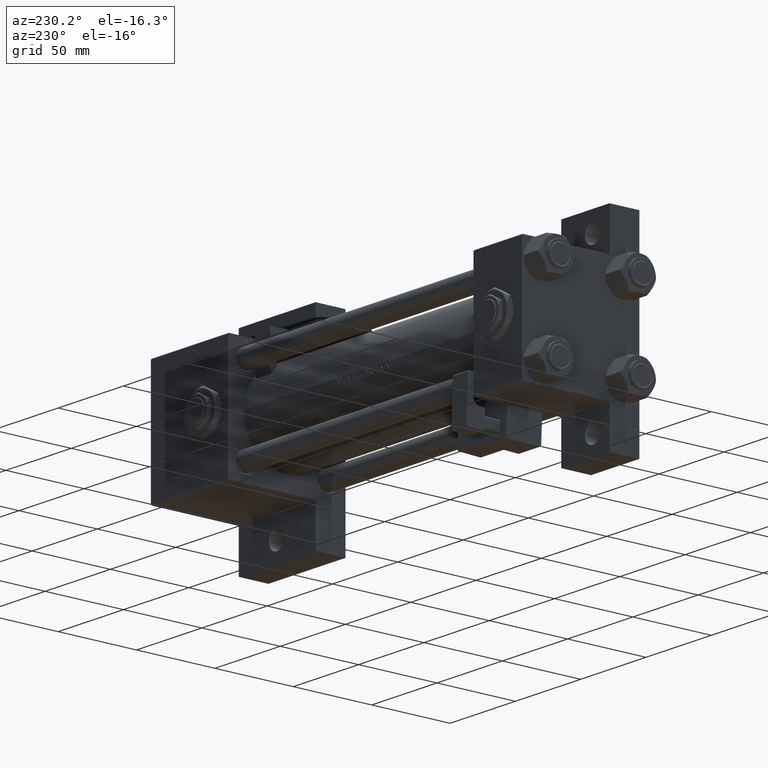
[diagram: clean part render]
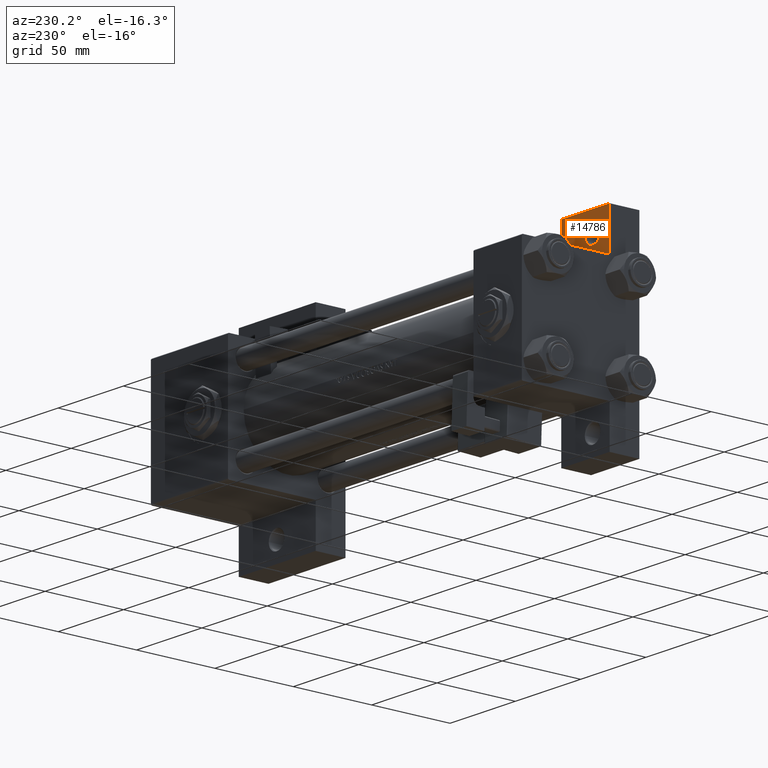
[diagram: same view with one face highlighted and labeled with its STEP entity id]
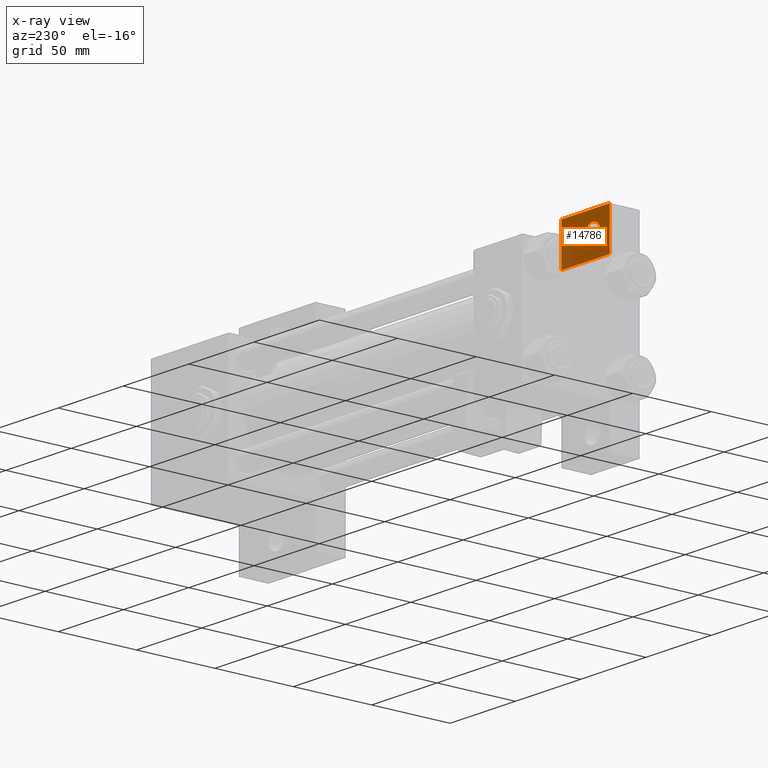
[diagram: x-ray of the same camera — body ghosted, the highlighted face saturated]
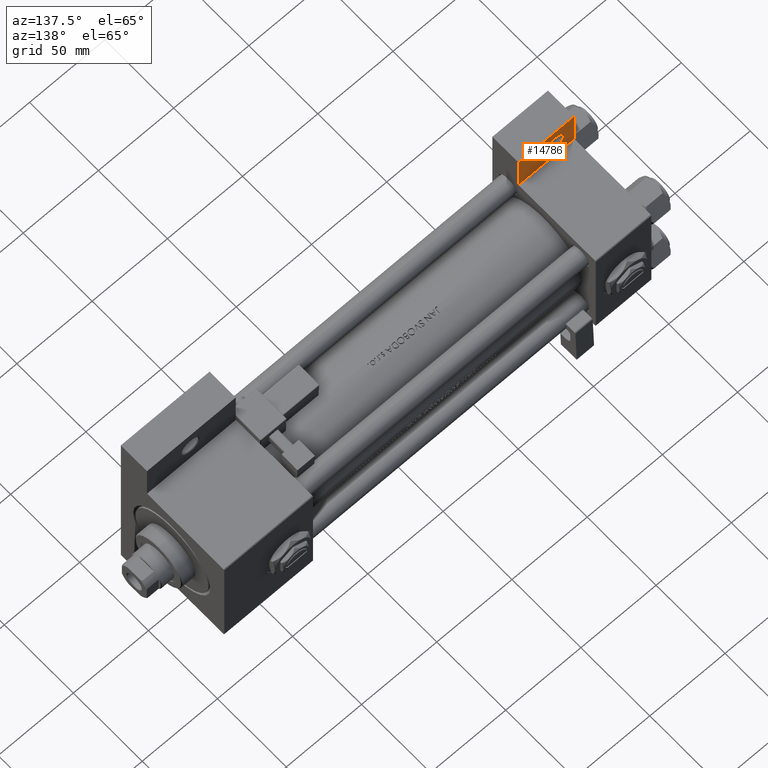
[diagram: same view with one face highlighted and labeled with its STEP entity id]
A machine part, auxiliary view. The second image highlights one B-rep face of the part: STEP entity #14786.
The next image is the same camera in x-ray: the body ghosted, the highlighted face saturated — about 15% of this face is hidden behind the body in this view.
A second angle (auxiliary view) of the same face is appended — the face is thin or edge-on in the first view.
In plain terms, the highlighted planar face has unit normal (0, -1, 0).
Its self-contained STEP definition (entity closure, byte-faithful):
#168 = DIRECTION ( 'NONE',  ( 4.278042683914906889E-17, -1.000000000000000000, 0.000000000000000000 ) ) ;
#1941 = CARTESIAN_POINT ( 'NONE',  ( 37.00000000000000000, -63.50000000000000000, -18.50000000000000355 ) ) ;
#2852 = EDGE_LOOP ( 'NONE', ( #14624, #29643, #24584, #28695 ) ) ;
#3319 = DIRECTION ( 'NONE',  ( -1.000000000000000000, 0.000000000000000000, 0.000000000000000000 ) ) ;
#3846 = CARTESIAN_POINT ( 'NONE',  ( 3.977209754999747208E-16, -63.50000000000000000, -18.50000000000000355 ) ) ;
#3964 = DIRECTION ( 'NONE',  ( -0.000000000000000000, 1.000000000000000000, 0.000000000000000000 ) ) ;
#4314 = CARTESIAN_POINT ( 'NONE',  ( 3.977209754999744250E-16, -63.49999999999998579, -18.50000000000000355 ) ) ;
#4819 = LINE ( 'NONE', #4314, #45971 ) ;
#6723 = DIRECTION ( 'NONE',  ( 0.000000000000000000, 0.000000000000000000, -1.000000000000000000 ) ) ;
#6883 = EDGE_CURVE ( 'NONE', #48317, #24146, #4819, .T. ) ;
#7455 = CARTESIAN_POINT ( 'NONE',  ( 12.99999999999999822, -51.00000000000002842, -18.50000000000000000 ) ) ;
#8192 = AXIS2_PLACEMENT_3D ( 'NONE', #7455, #23250, #3319 ) ;
#9301 = CARTESIAN_POINT ( 'NONE',  ( 7.000500000000030809, -51.00000000000002842, -18.50000000000000000 ) ) ;
#9540 = CARTESIAN_POINT ( 'NONE',  ( 18.99949999999996564, -51.00000000000002842, -18.50000000000000000 ) ) ;
#11104 = LINE ( 'NONE', #22763, #20651 ) ;
#11603 = CARTESIAN_POINT ( 'NONE',  ( -7.145701223179004046E-16, -37.50000000000000711, -18.50000000000000355 ) ) ;
#13752 = CARTESIAN_POINT ( 'NONE',  ( 0.000000000000000000, 0.000000000000000000, -18.50000000000000000 ) ) ;
#14259 = FACE_OUTER_BOUND ( 'NONE', #2852, .T. ) ;
#14624 = ORIENTED_EDGE ( 'NONE', *, *, #46820, .T. ) ;
#14786 = ADVANCED_FACE ( 'NONE', ( #22267, #14259 ), #34211, .F. ) ;
#16155 = CARTESIAN_POINT ( 'NONE',  ( 37.00000000000000000, -63.49999999999998579, -18.50000000000000355 ) ) ;
#19895 = DIRECTION ( 'NONE',  ( 0.000000000000000000, 0.000000000000000000, -1.000000000000000000 ) ) ;
#20651 = VECTOR ( 'NONE', #29800, 1000.000000000000000 ) ;
#21600 = CIRCLE ( 'NONE', #40670, 5.999499999999966526 ) ;
#22262 = EDGE_CURVE ( 'NONE', #32360, #44181, #21600, .T. ) ;
#22267 = FACE_BOUND ( 'NONE', #41977, .T. ) ;
#22763 = CARTESIAN_POINT ( 'NONE',  ( 3.977209754999747208E-16, -63.50000000000000000, -18.50000000000000355 ) ) ;
#23250 = DIRECTION ( 'NONE',  ( 0.000000000000000000, 0.000000000000000000, -1.000000000000000000 ) ) ;
#24146 = VERTEX_POINT ( 'NONE', #3846 ) ;
#24289 = CARTESIAN_POINT ( 'NONE',  ( 12.99999999999999822, -51.00000000000002842, -18.50000000000000000 ) ) ;
#24584 = ORIENTED_EDGE ( 'NONE', *, *, #6883, .T. ) ;
#26389 = VERTEX_POINT ( 'NONE', #37677 ) ;
#27005 = LINE ( 'NONE', #16155, #49754 ) ;
#28695 = ORIENTED_EDGE ( 'NONE', *, *, #42458, .T. ) ;
#28726 = ORIENTED_EDGE ( 'NONE', *, *, #37286, .T. ) ;
#29643 = ORIENTED_EDGE ( 'NONE', *, *, #49197, .T. ) ;
#29800 = DIRECTION ( 'NONE',  ( 1.000000000000000000, 0.000000000000000000, 0.000000000000000000 ) ) ;
#31585 = DIRECTION ( 'NONE',  ( -1.000000000000000000, 0.000000000000000000, 0.000000000000000000 ) ) ;
#32360 = VERTEX_POINT ( 'NONE', #9540 ) ;
#33457 = DIRECTION ( 'NONE',  ( -1.000000000000000000, 0.000000000000000000, -0.000000000000000000 ) ) ;
#33848 = CIRCLE ( 'NONE', #8192, 5.999499999999966526 ) ;
#34211 = PLANE ( 'NONE',  #39558 ) ;
#34955 = LINE ( 'NONE', #43755, #35829 ) ;
#35829 = VECTOR ( 'NONE', #31585, 1000.000000000000000 ) ;
#36220 = DIRECTION ( 'NONE',  ( -1.000000000000000000, 0.000000000000000000, 0.000000000000000000 ) ) ;
#37286 = EDGE_CURVE ( 'NONE', #44181, #32360, #33848, .T. ) ;
#37677 = CARTESIAN_POINT ( 'NONE',  ( 37.00000000000000000, -37.50000000000000000, -18.50000000000000355 ) ) ;
#39558 = AXIS2_PLACEMENT_3D ( 'NONE', #13752, #6723, #33457 ) ;
#40670 = AXIS2_PLACEMENT_3D ( 'NONE', #24289, #19895, #36220 ) ;
#41977 = EDGE_LOOP ( 'NONE', ( #42578, #28726 ) ) ;
#42458 = EDGE_CURVE ( 'NONE', #24146, #45812, #11104, .T. ) ;
#42578 = ORIENTED_EDGE ( 'NONE', *, *, #22262, .T. ) ;
#43755 = CARTESIAN_POINT ( 'NONE',  ( -7.145701223179000102E-16, -37.50000000000001421, -18.49999999999999645 ) ) ;
#44181 = VERTEX_POINT ( 'NONE', #9301 ) ;
#45812 = VERTEX_POINT ( 'NONE', #1941 ) ;
#45971 = VECTOR ( 'NONE', #168, 1000.000000000000000 ) ;
#46820 = EDGE_CURVE ( 'NONE', #45812, #26389, #27005, .T. ) ;
#48317 = VERTEX_POINT ( 'NONE', #11603 ) ;
#49197 = EDGE_CURVE ( 'NONE', #26389, #48317, #34955, .T. ) ;
#49754 = VECTOR ( 'NONE', #3964, 1000.000000000000000 ) ;